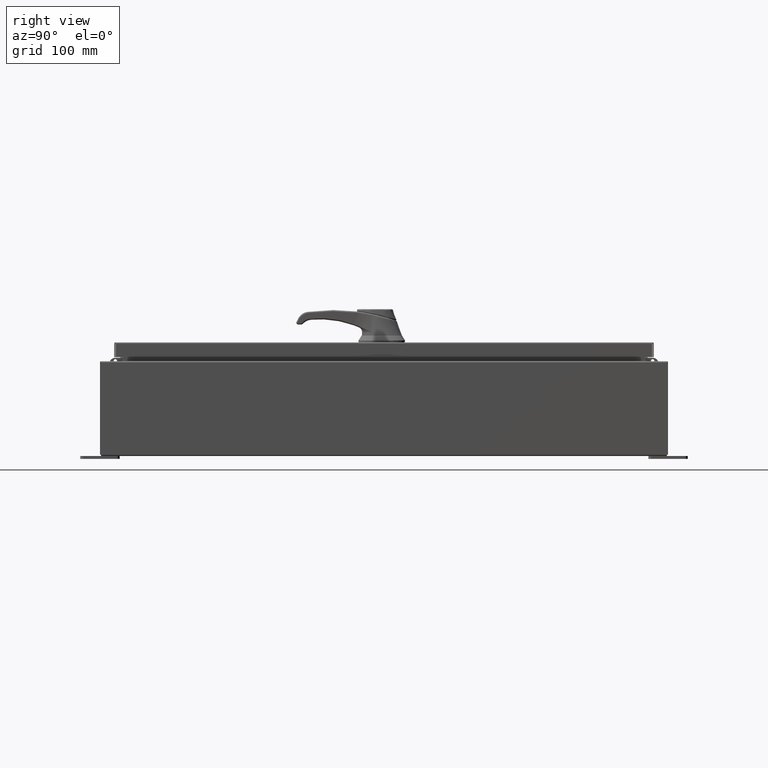
[diagram: clean part render]
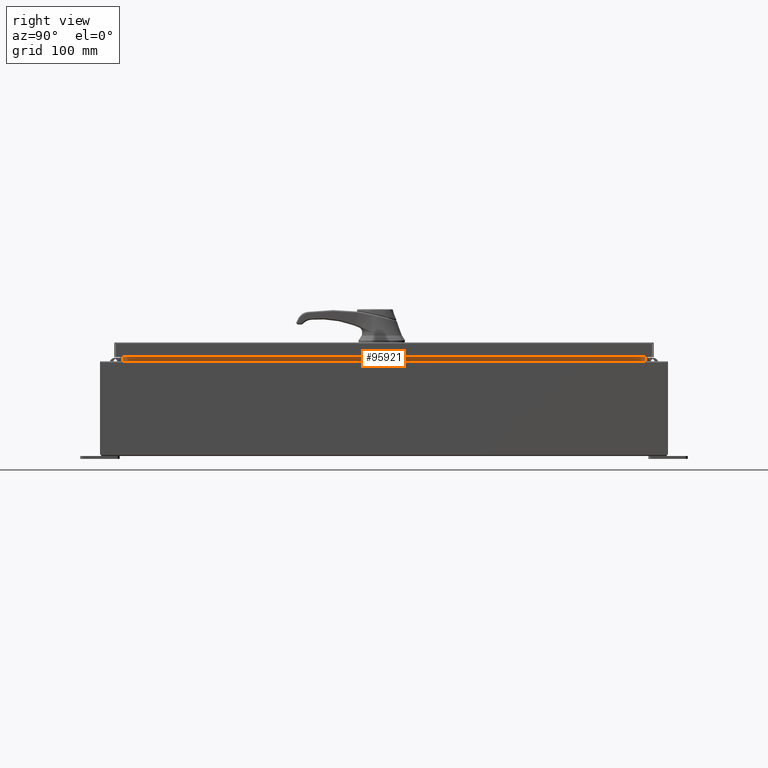
[diagram: same view with one face highlighted and labeled with its STEP entity id]
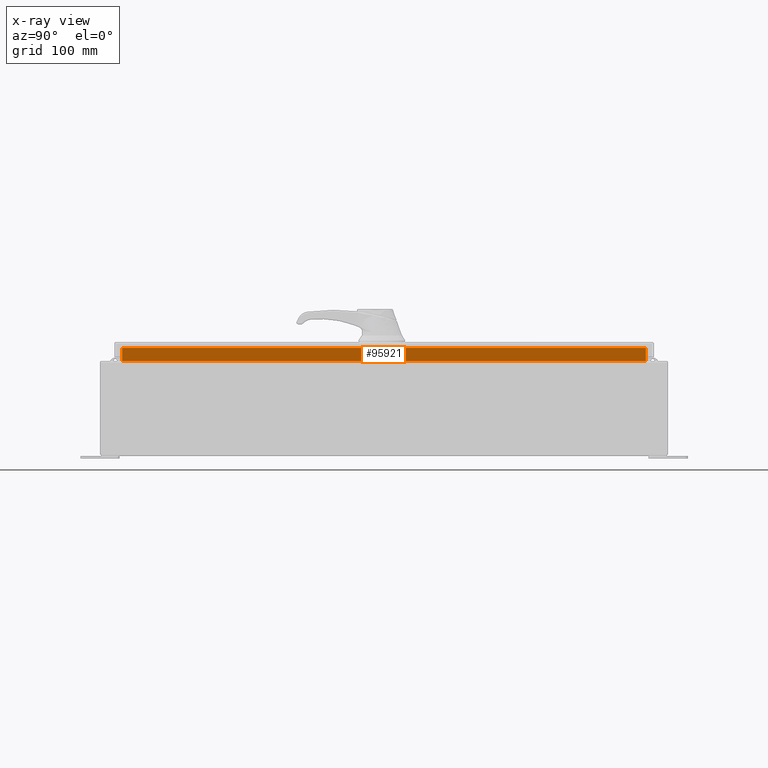
[diagram: x-ray of the same camera — body ghosted, the highlighted face saturated]
A machine part, right view. The second image highlights one B-rep face of the part: STEP entity #95921.
The next image is the same camera in x-ray: the body ghosted, the highlighted face saturated — about 0% of this face is hidden behind the body in this view.
In plain terms, the highlighted planar face has unit normal (1, 0, -0).
Its self-contained STEP definition (entity closure, byte-faithful):
#223 = VECTOR ( 'NONE', #32606, 39.37007874015748100 ) ;
#3224 = ORIENTED_EDGE ( 'NONE', *, *, #68662, .F. ) ;
#5648 = EDGE_CURVE ( 'NONE', #16928, #108776, #85873, .T. ) ;
#6036 = LINE ( 'NONE', #19310, #101227 ) ;
#13932 = PLANE ( 'NONE',  #76399 ) ;
#16928 = VERTEX_POINT ( 'NONE', #96712 ) ;
#17132 = ORIENTED_EDGE ( 'NONE', *, *, #5648, .F. ) ;
#19310 = CARTESIAN_POINT ( 'NONE',  ( 10.69970000000002500, -16.59375000000000000, 6.850600000000010700 ) ) ;
#20363 = EDGE_LOOP ( 'NONE', ( #92379, #3224, #71914, #17132 ) ) ;
#23569 = DIRECTION ( 'NONE',  ( 1.000000000000000000, 0.0000000000000000000, -4.723826639860392000E-015 ) ) ;
#24588 = FACE_OUTER_BOUND ( 'NONE', #20363, .T. ) ;
#32606 = DIRECTION ( 'NONE',  ( -4.723826639860392000E-015, -0.0000000000000000000, -1.000000000000000000 ) ) ;
#32788 = CARTESIAN_POINT ( 'NONE',  ( 10.69969999999999300, 0.0000000000000000000, -5.054352789851420600E-014 ) ) ;
#39260 = VECTOR ( 'NONE', #123097, 39.37007874015748100 ) ;
#42103 = CARTESIAN_POINT ( 'NONE',  ( 10.69970000000002500, -16.59375000000000000, 6.762900000000009900 ) ) ;
#56132 = EDGE_CURVE ( 'NONE', #99658, #16928, #73313, .T. ) ;
#57544 = DIRECTION ( 'NONE',  ( 4.723826639860403100E-015, -0.0000000000000000000, 1.000000000000000000 ) ) ;
#63875 = CARTESIAN_POINT ( 'NONE',  ( 10.69970000000002800, 16.59375000000000000, 6.762900000000009900 ) ) ;
#66385 = CARTESIAN_POINT ( 'NONE',  ( 10.69970000000002800, -16.59375000000000000, 6.762900000000009900 ) ) ;
#66778 = VERTEX_POINT ( 'NONE', #42103 ) ;
#67148 = DIRECTION ( 'NONE',  ( 1.317049126888985600E-016, -1.000000000000000000, 6.585245634444928200E-017 ) ) ;
#68662 = EDGE_CURVE ( 'NONE', #66778, #99658, #114811, .T. ) ;
#71914 = ORIENTED_EDGE ( 'NONE', *, *, #111223, .F. ) ;
#73313 = LINE ( 'NONE', #89453, #223 ) ;
#76399 = AXIS2_PLACEMENT_3D ( 'NONE', #32788, #23569, #90034 ) ;
#78131 = CARTESIAN_POINT ( 'NONE',  ( 10.69970000000002000, 16.59375000000000000, 5.938300000000010600 ) ) ;
#82871 = VECTOR ( 'NONE', #67148, 39.37007874015748100 ) ;
#85873 = LINE ( 'NONE', #78131, #82871 ) ;
#89453 = CARTESIAN_POINT ( 'NONE',  ( 10.69970000000002100, 16.59375000000000000, 5.925300000000009800 ) ) ;
#90034 = DIRECTION ( 'NONE',  ( -4.723826639860392000E-015, 0.0000000000000000000, -1.000000000000000000 ) ) ;
#92379 = ORIENTED_EDGE ( 'NONE', *, *, #56132, .F. ) ;
#95921 = ADVANCED_FACE ( 'NONE', ( #24588 ), #13932, .T. ) ;
#96712 = CARTESIAN_POINT ( 'NONE',  ( 10.69970000000002100, 16.59375000000000000, 5.938300000000011500 ) ) ;
#99658 = VERTEX_POINT ( 'NONE', #63875 ) ;
#101227 = VECTOR ( 'NONE', #57544, 39.37007874015748100 ) ;
#108776 = VERTEX_POINT ( 'NONE', #120837 ) ;
#111223 = EDGE_CURVE ( 'NONE', #108776, #66778, #6036, .T. ) ;
#114811 = LINE ( 'NONE', #66385, #39260 ) ;
#120837 = CARTESIAN_POINT ( 'NONE',  ( 10.69970000000002100, -16.59375000000000000, 5.938300000000011500 ) ) ;
#123097 = DIRECTION ( 'NONE',  ( 0.0000000000000000000, 1.000000000000000000, 0.0000000000000000000 ) ) ;